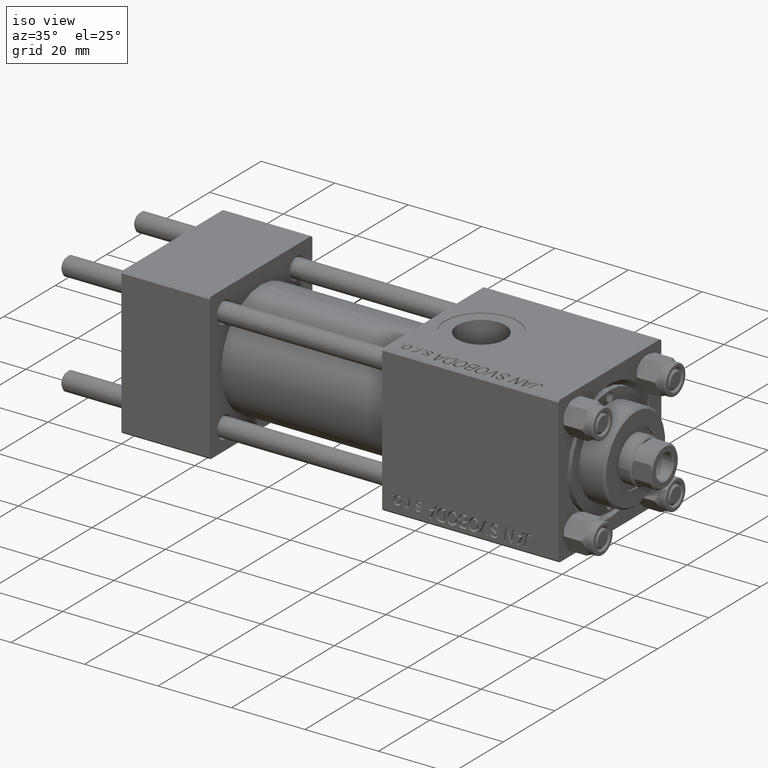
[diagram: clean part render]
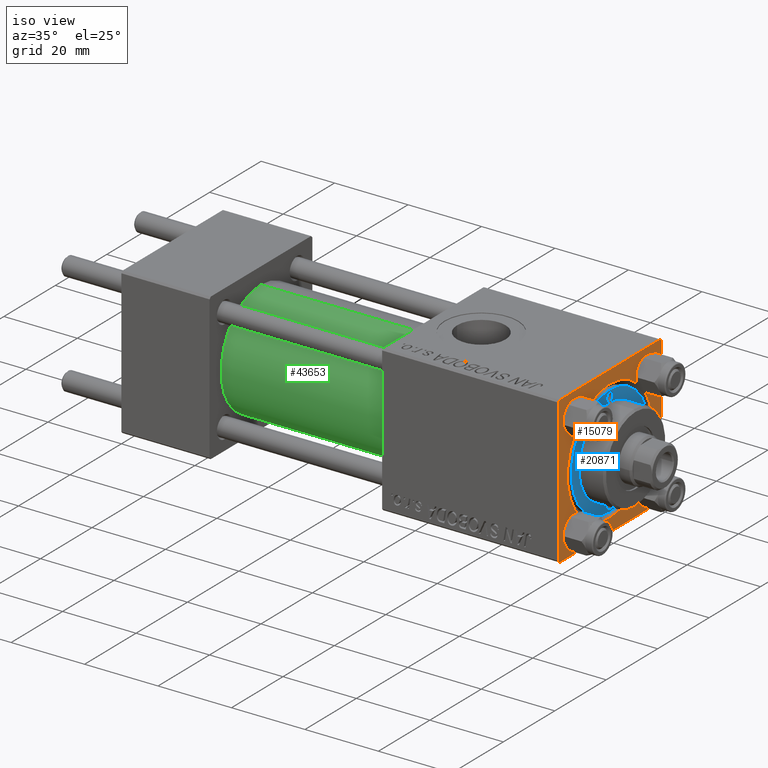
[diagram: same view with three faces highlighted in distinct colors, each labeled with its STEP entity id]
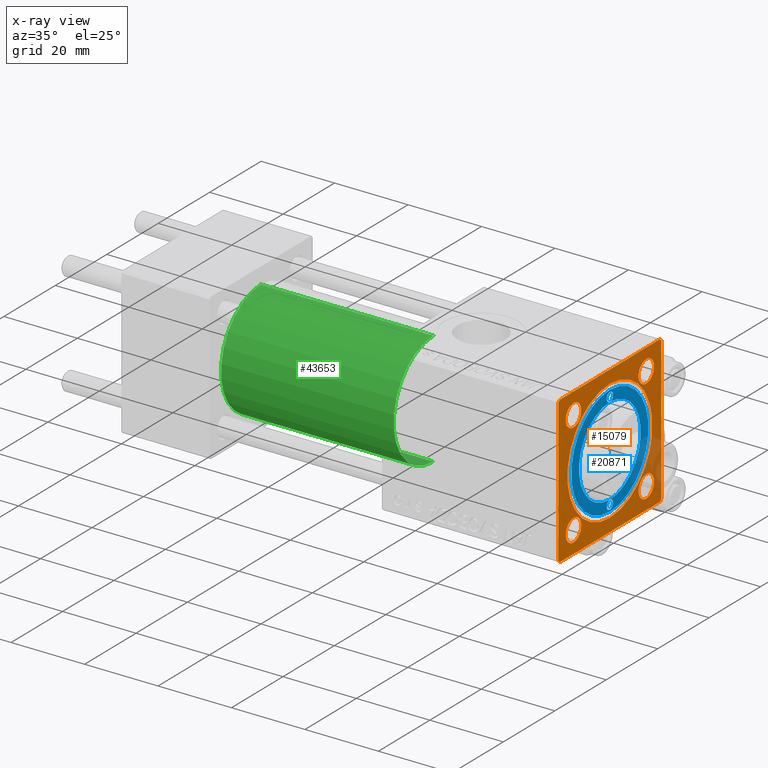
[diagram: x-ray of the same camera — body ghosted, the three highlighted faces saturated]
A machine part, iso view with three faces highlighted in distinct colors.
The next image is the same camera in x-ray (body ghosted, the three faces saturated) — at least one of them is partly hidden behind the body in this view.
Their STEP definitions:

[orange] entity #15079 — the highlighted planar face has unit normal (-1, 0, 0).
#350 = DIRECTION ( 'NONE',  ( -1.000000000000000000, -0.000000000000000000, -0.000000000000000000 ) ) ;
#401 = DIRECTION ( 'NONE',  ( -1.000000000000000000, -0.000000000000000000, -0.000000000000000000 ) ) ;
#537 = DIRECTION ( 'NONE',  ( 0.000000000000000000, 0.000000000000000000, 1.000000000000000000 ) ) ;
#595 = VERTEX_POINT ( 'NONE', #20015 ) ;
#1360 = CARTESIAN_POINT ( 'NONE',  ( 119.0000000000000142, 0.000000000000000000, 0.000000000000000000 ) ) ;
#1429 = ORIENTED_EDGE ( 'NONE', *, *, #46907, .T. ) ;
#1576 = EDGE_CURVE ( 'NONE', #47763, #35664, #33543, .T. ) ;
#1869 = EDGE_LOOP ( 'NONE', ( #9556, #32699, #48989, #27683, #28500, #45691, #49365, #3422 ) ) ;
#2067 = DIRECTION ( 'NONE',  ( 0.000000000000000000, 0.000000000000000000, 1.000000000000000000 ) ) ;
#2308 = CARTESIAN_POINT ( 'NONE',  ( 119.0000000000000142, 14.15000000000000036, -14.15000000000000036 ) ) ;
#2960 = VERTEX_POINT ( 'NONE', #28159 ) ;
#3079 = VECTOR ( 'NONE', #17156, 1000.000000000000000 ) ;
#3242 = EDGE_CURVE ( 'NONE', #28154, #10183, #8111, .T. ) ;
#3253 = DIRECTION ( 'NONE',  ( 0.000000000000000000, 0.000000000000000000, -1.000000000000000000 ) ) ;
#3333 = DIRECTION ( 'NONE',  ( -1.000000000000000000, -0.000000000000000000, -0.000000000000000000 ) ) ;
#3422 = ORIENTED_EDGE ( 'NONE', *, *, #24208, .T. ) ;
#3576 = VECTOR ( 'NONE', #15401, 999.9999999999998863 ) ;
#4071 = CARTESIAN_POINT ( 'NONE',  ( 119.0000000000000142, -20.00000000000000355, 19.99999999999999645 ) ) ;
#5665 = DIRECTION ( 'NONE',  ( -1.000000000000000000, -0.000000000000000000, -0.000000000000000000 ) ) ;
#5805 = EDGE_CURVE ( 'NONE', #47763, #36830, #30387, .T. ) ;
#6480 = DIRECTION ( 'NONE',  ( -1.000000000000000000, -0.000000000000000000, -0.000000000000000000 ) ) ;
#6944 = EDGE_LOOP ( 'NONE', ( #40904, #9887 ) ) ;
#7025 = EDGE_CURVE ( 'NONE', #45436, #37199, #18712, .T. ) ;
#7185 = ORIENTED_EDGE ( 'NONE', *, *, #7025, .T. ) ;
#7190 = VERTEX_POINT ( 'NONE', #48741 ) ;
#8111 = CIRCLE ( 'NONE', #42799, 16.50000000000001421 ) ;
#8191 = EDGE_LOOP ( 'NONE', ( #37992, #27934 ) ) ;
#8194 = DIRECTION ( 'NONE',  ( -1.000000000000000000, 0.000000000000000000, -0.000000000000000000 ) ) ;
#8418 = EDGE_CURVE ( 'NONE', #34794, #595, #13114, .T. ) ;
#8577 = ORIENTED_EDGE ( 'NONE', *, *, #14485, .T. ) ;
#9305 = CARTESIAN_POINT ( 'NONE',  ( 119.0000000000000142, 14.15000000000000036, -11.14999999999999680 ) ) ;
#9416 = CARTESIAN_POINT ( 'NONE',  ( 119.0000000000000142, 14.15000000000000036, 14.15000000000000036 ) ) ;
#9556 = ORIENTED_EDGE ( 'NONE', *, *, #25754, .T. ) ;
#9830 = LINE ( 'NONE', #36829, #3079 ) ;
#9887 = ORIENTED_EDGE ( 'NONE', *, *, #32369, .T. ) ;
#10086 = LINE ( 'NONE', #16904, #38244 ) ;
#10183 = VERTEX_POINT ( 'NONE', #29644 ) ;
#10463 = AXIS2_PLACEMENT_3D ( 'NONE', #9416, #32118, #16743 ) ;
#10580 = DIRECTION ( 'NONE',  ( -1.000000000000000000, -0.000000000000000000, -0.000000000000000000 ) ) ;
#10765 = AXIS2_PLACEMENT_3D ( 'NONE', #25663, #6480, #21887 ) ;
#10826 = AXIS2_PLACEMENT_3D ( 'NONE', #1360, #8194, #46575 ) ;
#10905 = DIRECTION ( 'NONE',  ( 0.000000000000000000, 0.000000000000000000, 1.000000000000000000 ) ) ;
#11289 = CIRCLE ( 'NONE', #23390, 3.000000000000004441 ) ;
#11691 = CARTESIAN_POINT ( 'NONE',  ( 119.0000000000000142, -20.00000000000000000, -19.50000000000001066 ) ) ;
#12116 = LINE ( 'NONE', #49978, #3576 ) ;
#12150 = AXIS2_PLACEMENT_3D ( 'NONE', #22748, #15928, #10905 ) ;
#12575 = EDGE_CURVE ( 'NONE', #25505, #37127, #30009, .T. ) ;
#13114 = LINE ( 'NONE', #33268, #18755 ) ;
#13208 = AXIS2_PLACEMENT_3D ( 'NONE', #2308, #36388, #2067 ) ;
#14284 = CARTESIAN_POINT ( 'NONE',  ( 119.0000000000000142, -20.00000000000000355, 19.50000000000002487 ) ) ;
#14295 = CARTESIAN_POINT ( 'NONE',  ( 119.0000000000000142, 19.99999999999999645, 19.49999999999998579 ) ) ;
#14485 = EDGE_CURVE ( 'NONE', #7190, #27793, #16419, .T. ) ;
#14852 = CARTESIAN_POINT ( 'NONE',  ( 119.0000000000000142, -19.50000000000001776, 19.99999999999999645 ) ) ;
#15079 = ADVANCED_FACE ( 'NONE', ( #35197, #19572, #23845, #27872, #27123, #15779 ), #31905, .F. ) ;
#15401 = DIRECTION ( 'NONE',  ( 0.000000000000000000, 0.7071067811865376918, -0.7071067811865574537 ) ) ;
#15446 = CARTESIAN_POINT ( 'NONE',  ( 119.0000000000000142, -14.15000000000000036, -14.15000000000000036 ) ) ;
#15671 = DIRECTION ( 'NONE',  ( 0.000000000000000000, 0.000000000000000000, 1.000000000000000000 ) ) ;
#15779 = FACE_OUTER_BOUND ( 'NONE', #1869, .T. ) ;
#15928 = DIRECTION ( 'NONE',  ( -1.000000000000000000, -0.000000000000000000, -0.000000000000000000 ) ) ;
#16004 = CARTESIAN_POINT ( 'NONE',  ( 119.0000000000000142, -14.15000000000000036, 11.15000000000002700 ) ) ;
#16419 = CIRCLE ( 'NONE', #10765, 3.000000000000000888 ) ;
#16530 = EDGE_CURVE ( 'NONE', #40784, #595, #12116, .T. ) ;
#16636 = EDGE_CURVE ( 'NONE', #34794, #35664, #10086, .T. ) ;
#16743 = DIRECTION ( 'NONE',  ( 0.000000000000000000, 0.000000000000000000, 1.000000000000000000 ) ) ;
#16904 = CARTESIAN_POINT ( 'NONE',  ( 119.0000000000000142, 19.99999999999999645, -19.50000000000000000 ) ) ;
#17156 = DIRECTION ( 'NONE',  ( 0.000000000000000000, -1.000000000000000000, -8.673617379884035472E-17 ) ) ;
#17242 = CIRCLE ( 'NONE', #13208, 3.000000000000004441 ) ;
#17393 = DIRECTION ( 'NONE',  ( 0.000000000000000000, -1.000000000000000000, 0.000000000000000000 ) ) ;
#18712 = CIRCLE ( 'NONE', #47787, 2.999999999999973355 ) ;
#18755 = VECTOR ( 'NONE', #17393, 1000.000000000000000 ) ;
#19333 = DIRECTION ( 'NONE',  ( -0.000000000000000000, -0.7071067811865573427, -0.7071067811865376918 ) ) ;
#19572 = FACE_BOUND ( 'NONE', #22689, .T. ) ;
#19602 = CARTESIAN_POINT ( 'NONE',  ( 119.0000000000000142, -20.00000000000000355, 19.50000000000002487 ) ) ;
#20015 = CARTESIAN_POINT ( 'NONE',  ( 119.0000000000000142, -19.50000000000002487, -20.00000000000000000 ) ) ;
#20134 = AXIS2_PLACEMENT_3D ( 'NONE', #35487, #401, #39276 ) ;
#21157 = CARTESIAN_POINT ( 'NONE',  ( 119.0000000000000142, 19.99999999999999645, -19.50000000000000000 ) ) ;
#21887 = DIRECTION ( 'NONE',  ( 0.000000000000000000, 0.000000000000000000, 1.000000000000000000 ) ) ;
#22689 = EDGE_LOOP ( 'NONE', ( #28915, #1429 ) ) ;
#22748 = CARTESIAN_POINT ( 'NONE',  ( 119.0000000000000142, -14.15000000000000036, 14.15000000000000036 ) ) ;
#23003 = LINE ( 'NONE', #4071, #40885 ) ;
#23067 = CARTESIAN_POINT ( 'NONE',  ( 119.0000000000000142, 19.49999999999996803, 20.00000000000000000 ) ) ;
#23390 = AXIS2_PLACEMENT_3D ( 'NONE', #45964, #10580, #15671 ) ;
#23845 = FACE_BOUND ( 'NONE', #45568, .T. ) ;
#24104 = CARTESIAN_POINT ( 'NONE',  ( 119.0000000000000142, 0.000000000000000000, -16.50000000000001421 ) ) ;
#24208 = EDGE_CURVE ( 'NONE', #27579, #38489, #34977, .T. ) ;
#25505 = VERTEX_POINT ( 'NONE', #39719 ) ;
#25596 = VECTOR ( 'NONE', #19333, 1000.000000000000114 ) ;
#25663 = CARTESIAN_POINT ( 'NONE',  ( 119.0000000000000142, 14.15000000000000036, 14.15000000000000036 ) ) ;
#25754 = EDGE_CURVE ( 'NONE', #38489, #40784, #23003, .T. ) ;
#26283 = EDGE_CURVE ( 'NONE', #2960, #48192, #48147, .T. ) ;
#27123 = FACE_BOUND ( 'NONE', #6944, .T. ) ;
#27579 = VERTEX_POINT ( 'NONE', #14852 ) ;
#27683 = ORIENTED_EDGE ( 'NONE', *, *, #16636, .T. ) ;
#27793 = VERTEX_POINT ( 'NONE', #31974 ) ;
#27872 = FACE_BOUND ( 'NONE', #35063, .T. ) ;
#27934 = ORIENTED_EDGE ( 'NONE', *, *, #34108, .T. ) ;
#28154 = VERTEX_POINT ( 'NONE', #24104 ) ;
#28159 = CARTESIAN_POINT ( 'NONE',  ( 119.0000000000000142, -14.15000000000000036, -17.15000000000000568 ) ) ;
#28217 = VECTOR ( 'NONE', #3253, 1000.000000000000000 ) ;
#28247 = DIRECTION ( 'NONE',  ( -0.000000000000000000, 0.7071067811865474617, 0.7071067811865474617 ) ) ;
#28500 = ORIENTED_EDGE ( 'NONE', *, *, #1576, .F. ) ;
#28915 = ORIENTED_EDGE ( 'NONE', *, *, #12575, .T. ) ;
#29069 = EDGE_CURVE ( 'NONE', #36830, #27579, #9830, .T. ) ;
#29644 = CARTESIAN_POINT ( 'NONE',  ( 119.0000000000000142, 2.020667218593134678E-15, 16.50000000000001421 ) ) ;
#30009 = CIRCLE ( 'NONE', #30838, 3.000000000000004441 ) ;
#30387 = LINE ( 'NONE', #23067, #32404 ) ;
#30838 = AXIS2_PLACEMENT_3D ( 'NONE', #35960, #5665, #36462 ) ;
#31384 = CIRCLE ( 'NONE', #20134, 16.50000000000001421 ) ;
#31905 = PLANE ( 'NONE',  #10826 ) ;
#31974 = CARTESIAN_POINT ( 'NONE',  ( 119.0000000000000142, 14.15000000000000036, 17.15000000000000568 ) ) ;
#32118 = DIRECTION ( 'NONE',  ( -1.000000000000000000, -0.000000000000000000, -0.000000000000000000 ) ) ;
#32369 = EDGE_CURVE ( 'NONE', #10183, #28154, #31384, .T. ) ;
#32404 = VECTOR ( 'NONE', #34666, 999.9999999999998863 ) ;
#32699 = ORIENTED_EDGE ( 'NONE', *, *, #16530, .T. ) ;
#32788 = EDGE_CURVE ( 'NONE', #27793, #7190, #40301, .T. ) ;
#32807 = AXIS2_PLACEMENT_3D ( 'NONE', #15446, #38176, #537 ) ;
#33268 = CARTESIAN_POINT ( 'NONE',  ( 119.0000000000000142, 19.99999999999999645, -20.00000000000000000 ) ) ;
#33543 = LINE ( 'NONE', #48960, #28217 ) ;
#34108 = EDGE_CURVE ( 'NONE', #48192, #2960, #11289, .T. ) ;
#34118 = DIRECTION ( 'NONE',  ( 0.000000000000000000, 0.000000000000000000, 1.000000000000000000 ) ) ;
#34467 = CARTESIAN_POINT ( 'NONE',  ( 119.0000000000000142, -14.15000000000000036, -11.14999999999999680 ) ) ;
#34666 = DIRECTION ( 'NONE',  ( 0.000000000000000000, -0.7071067811865574537, 0.7071067811865376918 ) ) ;
#34794 = VERTEX_POINT ( 'NONE', #46858 ) ;
#34977 = LINE ( 'NONE', #19602, #25596 ) ;
#35035 = EDGE_CURVE ( 'NONE', #37199, #45436, #41957, .T. ) ;
#35063 = EDGE_LOOP ( 'NONE', ( #7185, #37189 ) ) ;
#35197 = FACE_BOUND ( 'NONE', #8191, .T. ) ;
#35487 = CARTESIAN_POINT ( 'NONE',  ( 119.0000000000000142, 0.000000000000000000, 0.000000000000000000 ) ) ;
#35664 = VERTEX_POINT ( 'NONE', #21157 ) ;
#35960 = CARTESIAN_POINT ( 'NONE',  ( 119.0000000000000142, 14.15000000000000036, -14.15000000000000036 ) ) ;
#36388 = DIRECTION ( 'NONE',  ( -1.000000000000000000, -0.000000000000000000, -0.000000000000000000 ) ) ;
#36462 = DIRECTION ( 'NONE',  ( 0.000000000000000000, 0.000000000000000000, 1.000000000000000000 ) ) ;
#36829 = CARTESIAN_POINT ( 'NONE',  ( 119.0000000000000142, 19.99999999999999645, 20.00000000000000000 ) ) ;
#36830 = VERTEX_POINT ( 'NONE', #41782 ) ;
#37127 = VERTEX_POINT ( 'NONE', #9305 ) ;
#37189 = ORIENTED_EDGE ( 'NONE', *, *, #35035, .T. ) ;
#37199 = VERTEX_POINT ( 'NONE', #48188 ) ;
#37905 = DIRECTION ( 'NONE',  ( 0.000000000000000000, 8.673617379884036705E-17, -1.000000000000000000 ) ) ;
#37992 = ORIENTED_EDGE ( 'NONE', *, *, #26283, .T. ) ;
#38176 = DIRECTION ( 'NONE',  ( -1.000000000000000000, -0.000000000000000000, -0.000000000000000000 ) ) ;
#38244 = VECTOR ( 'NONE', #28247, 1000.000000000000114 ) ;
#38489 = VERTEX_POINT ( 'NONE', #14284 ) ;
#39221 = DIRECTION ( 'NONE',  ( 0.000000000000000000, 0.000000000000000000, 1.000000000000000000 ) ) ;
#39276 = DIRECTION ( 'NONE',  ( 0.000000000000000000, 0.000000000000000000, 1.000000000000000000 ) ) ;
#39719 = CARTESIAN_POINT ( 'NONE',  ( 119.0000000000000142, 14.15000000000000036, -17.15000000000000568 ) ) ;
#40301 = CIRCLE ( 'NONE', #10463, 3.000000000000000888 ) ;
#40784 = VERTEX_POINT ( 'NONE', #11691 ) ;
#40885 = VECTOR ( 'NONE', #37905, 1000.000000000000000 ) ;
#40904 = ORIENTED_EDGE ( 'NONE', *, *, #3242, .T. ) ;
#41782 = CARTESIAN_POINT ( 'NONE',  ( 119.0000000000000142, 19.49999999999996803, 20.00000000000000000 ) ) ;
#41883 = ORIENTED_EDGE ( 'NONE', *, *, #32788, .T. ) ;
#41954 = CARTESIAN_POINT ( 'NONE',  ( 119.0000000000000142, -14.15000000000000036, 14.15000000000000036 ) ) ;
#41957 = CIRCLE ( 'NONE', #12150, 2.999999999999973355 ) ;
#42774 = CARTESIAN_POINT ( 'NONE',  ( 119.0000000000000142, 0.000000000000000000, 0.000000000000000000 ) ) ;
#42799 = AXIS2_PLACEMENT_3D ( 'NONE', #42774, #350, #39221 ) ;
#45436 = VERTEX_POINT ( 'NONE', #16004 ) ;
#45568 = EDGE_LOOP ( 'NONE', ( #8577, #41883 ) ) ;
#45691 = ORIENTED_EDGE ( 'NONE', *, *, #5805, .T. ) ;
#45964 = CARTESIAN_POINT ( 'NONE',  ( 119.0000000000000142, -14.15000000000000036, -14.15000000000000036 ) ) ;
#46575 = DIRECTION ( 'NONE',  ( -0.000000000000000000, 0.000000000000000000, 1.000000000000000000 ) ) ;
#46858 = CARTESIAN_POINT ( 'NONE',  ( 119.0000000000000142, 19.49999999999999645, -20.00000000000000000 ) ) ;
#46907 = EDGE_CURVE ( 'NONE', #37127, #25505, #17242, .T. ) ;
#47763 = VERTEX_POINT ( 'NONE', #14295 ) ;
#47787 = AXIS2_PLACEMENT_3D ( 'NONE', #41954, #3333, #34118 ) ;
#48147 = CIRCLE ( 'NONE', #32807, 3.000000000000004441 ) ;
#48188 = CARTESIAN_POINT ( 'NONE',  ( 119.0000000000000142, -14.15000000000000036, 17.14999999999997726 ) ) ;
#48192 = VERTEX_POINT ( 'NONE', #34467 ) ;
#48741 = CARTESIAN_POINT ( 'NONE',  ( 119.0000000000000142, 14.15000000000000036, 11.14999999999999858 ) ) ;
#48960 = CARTESIAN_POINT ( 'NONE',  ( 119.0000000000000142, 19.99999999999999645, 20.00000000000000000 ) ) ;
#48989 = ORIENTED_EDGE ( 'NONE', *, *, #8418, .F. ) ;
#49365 = ORIENTED_EDGE ( 'NONE', *, *, #29069, .T. ) ;
#49978 = CARTESIAN_POINT ( 'NONE',  ( 119.0000000000000142, -19.50000000000002487, -20.00000000000000000 ) ) ;

[blue] entity #20871 — the highlighted planar face has unit normal (1, 0, -0).
#19 = ORIENTED_EDGE ( 'NONE', *, *, #40716, .F. ) ;
#250 = DIRECTION ( 'NONE',  ( 1.000000000000000000, 0.000000000000000000, 0.000000000000000000 ) ) ;
#1106 = VERTEX_POINT ( 'NONE', #23727 ) ;
#1187 = EDGE_CURVE ( 'NONE', #7667, #1106, #7244, .T. ) ;
#1418 = CARTESIAN_POINT ( 'NONE',  ( 14.49999999999999822, 0.000000000000000000, 28.69999999999999929 ) ) ;
#1489 = CIRCLE ( 'NONE', #36154, 15.00000000000000000 ) ;
#1815 = CARTESIAN_POINT ( 'NONE',  ( 0.000000000000000000, 0.000000000000000000, 28.69999999999999929 ) ) ;
#2465 = AXIS2_PLACEMENT_3D ( 'NONE', #10585, #26460, #26218 ) ;
#2969 = ORIENTED_EDGE ( 'NONE', *, *, #1187, .F. ) ;
#3540 = ORIENTED_EDGE ( 'NONE', *, *, #34436, .F. ) ;
#5051 = DIRECTION ( 'NONE',  ( 1.000000000000000000, 0.000000000000000000, 0.000000000000000000 ) ) ;
#5081 = ORIENTED_EDGE ( 'NONE', *, *, #29215, .T. ) ;
#5122 = DIRECTION ( 'NONE',  ( 0.000000000000000000, 0.000000000000000000, 1.000000000000000000 ) ) ;
#6461 = AXIS2_PLACEMENT_3D ( 'NONE', #40372, #24229, #47462 ) ;
#6656 = DIRECTION ( 'NONE',  ( 1.000000000000000000, 0.000000000000000000, 0.000000000000000000 ) ) ;
#7244 = CIRCLE ( 'NONE', #6461, 1.249999999999999334 ) ;
#7667 = VERTEX_POINT ( 'NONE', #1418 ) ;
#7844 = ORIENTED_EDGE ( 'NONE', *, *, #39898, .T. ) ;
#9094 = EDGE_CURVE ( 'NONE', #49370, #11671, #45390, .T. ) ;
#9455 = FACE_OUTER_BOUND ( 'NONE', #47613, .T. ) ;
#9707 = CIRCLE ( 'NONE', #2465, 12.00000000000000178 ) ;
#10585 = CARTESIAN_POINT ( 'NONE',  ( 0.000000000000000000, 0.000000000000000000, 28.69999999999999929 ) ) ;
#10626 = CARTESIAN_POINT ( 'NONE',  ( -14.49999999999999822, 1.530808498934190585E-16, 28.69999999999999929 ) ) ;
#11671 = VERTEX_POINT ( 'NONE', #10626 ) ;
#12539 = EDGE_LOOP ( 'NONE', ( #3540, #19, #13032, #48732, #2969, #32703 ) ) ;
#12877 = DIRECTION ( 'NONE',  ( 0.000000000000000000, 0.000000000000000000, 1.000000000000000000 ) ) ;
#12932 = DIRECTION ( 'NONE',  ( 0.000000000000000000, 0.000000000000000000, 1.000000000000000000 ) ) ;
#13032 = ORIENTED_EDGE ( 'NONE', *, *, #9094, .F. ) ;
#13259 = DIRECTION ( 'NONE',  ( 1.000000000000000000, 0.000000000000000000, -0.000000000000000000 ) ) ;
#13386 = CARTESIAN_POINT ( 'NONE',  ( 0.000000000000000000, 0.000000000000000000, 28.69999999999999929 ) ) ;
#13502 = CARTESIAN_POINT ( 'NONE',  ( 0.000000000000000000, 0.000000000000000000, 28.69999999999999929 ) ) ;
#13876 = VERTEX_POINT ( 'NONE', #28132 ) ;
#14240 = FACE_BOUND ( 'NONE', #12539, .T. ) ;
#16224 = AXIS2_PLACEMENT_3D ( 'NONE', #1815, #12932, #24546 ) ;
#17310 = CARTESIAN_POINT ( 'NONE',  ( -13.25000000000000178, 0.000000000000000000, 28.69999999999999929 ) ) ;
#20844 = AXIS2_PLACEMENT_3D ( 'NONE', #43184, #46707, #250 ) ;
#20871 = ADVANCED_FACE ( 'NONE', ( #14240, #9455 ), #29615, .T. ) ;
#21611 = CIRCLE ( 'NONE', #49811, 12.00000000000000178 ) ;
#23727 = CARTESIAN_POINT ( 'NONE',  ( 12.00000000000000178, 0.000000000000000000, 28.69999999999999929 ) ) ;
#24229 = DIRECTION ( 'NONE',  ( 0.000000000000000000, 0.000000000000000000, 1.000000000000000000 ) ) ;
#24546 = DIRECTION ( 'NONE',  ( 1.000000000000000000, 0.000000000000000000, 0.000000000000000000 ) ) ;
#26218 = DIRECTION ( 'NONE',  ( 1.000000000000000000, 0.000000000000000000, 0.000000000000000000 ) ) ;
#26460 = DIRECTION ( 'NONE',  ( 0.000000000000000000, 0.000000000000000000, 1.000000000000000000 ) ) ;
#28132 = CARTESIAN_POINT ( 'NONE',  ( 15.00000000000000000, 1.836970198721029589E-15, 28.69999999999999929 ) ) ;
#28233 = EDGE_CURVE ( 'NONE', #1106, #49370, #21611, .T. ) ;
#29071 = VERTEX_POINT ( 'NONE', #29244 ) ;
#29215 = EDGE_CURVE ( 'NONE', #13876, #29071, #1489, .T. ) ;
#29244 = CARTESIAN_POINT ( 'NONE',  ( -15.00000000000000000, 0.000000000000000000, 28.69999999999999929 ) ) ;
#29281 = AXIS2_PLACEMENT_3D ( 'NONE', #41243, #47843, #13259 ) ;
#29615 = PLANE ( 'NONE',  #29281 ) ;
#29634 = DIRECTION ( 'NONE',  ( 1.000000000000000000, 0.000000000000000000, 0.000000000000000000 ) ) ;
#29709 = EDGE_CURVE ( 'NONE', #1106, #7667, #30476, .T. ) ;
#30476 = CIRCLE ( 'NONE', #20844, 1.249999999999999334 ) ;
#32703 = ORIENTED_EDGE ( 'NONE', *, *, #29709, .F. ) ;
#33673 = DIRECTION ( 'NONE',  ( 0.000000000000000000, 0.000000000000000000, 1.000000000000000000 ) ) ;
#34436 = EDGE_CURVE ( 'NONE', #49370, #1106, #9707, .T. ) ;
#34639 = DIRECTION ( 'NONE',  ( 1.000000000000000000, 0.000000000000000000, 0.000000000000000000 ) ) ;
#34902 = CARTESIAN_POINT ( 'NONE',  ( -13.25000000000000178, 0.000000000000000000, 28.69999999999999929 ) ) ;
#36154 = AXIS2_PLACEMENT_3D ( 'NONE', #13502, #44794, #6656 ) ;
#39898 = EDGE_CURVE ( 'NONE', #29071, #13876, #42035, .T. ) ;
#40372 = CARTESIAN_POINT ( 'NONE',  ( 13.25000000000000000, 0.000000000000000000, 28.69999999999999929 ) ) ;
#40407 = CIRCLE ( 'NONE', #45281, 1.249999999999997558 ) ;
#40716 = EDGE_CURVE ( 'NONE', #11671, #49370, #40407, .T. ) ;
#41243 = CARTESIAN_POINT ( 'NONE',  ( 0.000000000000000000, 0.000000000000000000, 28.69999999999999929 ) ) ;
#42035 = CIRCLE ( 'NONE', #16224, 15.00000000000000000 ) ;
#42991 = AXIS2_PLACEMENT_3D ( 'NONE', #17310, #33673, #29634 ) ;
#43184 = CARTESIAN_POINT ( 'NONE',  ( 13.25000000000000000, 0.000000000000000000, 28.69999999999999929 ) ) ;
#44794 = DIRECTION ( 'NONE',  ( 0.000000000000000000, 0.000000000000000000, 1.000000000000000000 ) ) ;
#45281 = AXIS2_PLACEMENT_3D ( 'NONE', #34902, #5122, #34639 ) ;
#45390 = CIRCLE ( 'NONE', #42991, 1.249999999999997558 ) ;
#46707 = DIRECTION ( 'NONE',  ( 0.000000000000000000, 0.000000000000000000, 1.000000000000000000 ) ) ;
#47462 = DIRECTION ( 'NONE',  ( 1.000000000000000000, 0.000000000000000000, 0.000000000000000000 ) ) ;
#47613 = EDGE_LOOP ( 'NONE', ( #7844, #5081 ) ) ;
#47843 = DIRECTION ( 'NONE',  ( 0.000000000000000000, 0.000000000000000000, 1.000000000000000000 ) ) ;
#48055 = CARTESIAN_POINT ( 'NONE',  ( -12.00000000000000178, 0.000000000000000000, 28.69999999999999929 ) ) ;
#48732 = ORIENTED_EDGE ( 'NONE', *, *, #28233, .F. ) ;
#49370 = VERTEX_POINT ( 'NONE', #48055 ) ;
#49811 = AXIS2_PLACEMENT_3D ( 'NONE', #13386, #12877, #5051 ) ;

[green] entity #43653 — the highlighted cylindrical surface (partial cylindrical patch) has radius 15.5 mm, axis along (-1, -0, -0).
#3988 = DIRECTION ( 'NONE',  ( -1.000000000000000000, -0.000000000000000000, -0.000000000000000000 ) ) ;
#4476 = VECTOR ( 'NONE', #38299, 1000.000000000000000 ) ;
#4478 = CARTESIAN_POINT ( 'NONE',  ( 24.00000000000000000, 1.898202538678397557E-15, -15.50000000000000000 ) ) ;
#6602 = CIRCLE ( 'NONE', #34797, 15.50000000000000000 ) ;
#11410 = DIRECTION ( 'NONE',  ( 1.000000000000000000, 0.000000000000000000, 0.000000000000000000 ) ) ;
#11883 = DIRECTION ( 'NONE',  ( -1.000000000000000000, -0.000000000000000000, -0.000000000000000000 ) ) ;
#12066 = LINE ( 'NONE', #47173, #34409 ) ;
#13619 = EDGE_CURVE ( 'NONE', #44776, #47488, #45387, .T. ) ;
#15586 = ORIENTED_EDGE ( 'NONE', *, *, #37880, .F. ) ;
#15587 = LINE ( 'NONE', #35011, #4476 ) ;
#16849 = CARTESIAN_POINT ( 'NONE',  ( 24.00000000000000000, 0.000000000000000000, 0.000000000000000000 ) ) ;
#18227 = CARTESIAN_POINT ( 'NONE',  ( 24.00000000000000000, 0.000000000000000000, 15.50000000000000000 ) ) ;
#18860 = EDGE_CURVE ( 'NONE', #39848, #47488, #15587, .T. ) ;
#18985 = CARTESIAN_POINT ( 'NONE',  ( 71.00000000000001421, 0.000000000000000000, 0.000000000000000000 ) ) ;
#19891 = CARTESIAN_POINT ( 'NONE',  ( 71.00000000000001421, 0.000000000000000000, 15.50000000000000000 ) ) ;
#22659 = EDGE_CURVE ( 'NONE', #40143, #44776, #12066, .T. ) ;
#23235 = CARTESIAN_POINT ( 'NONE',  ( 71.00000000000001421, 0.000000000000000000, 0.000000000000000000 ) ) ;
#27024 = DIRECTION ( 'NONE',  ( 0.000000000000000000, 0.000000000000000000, 1.000000000000000000 ) ) ;
#27735 = ORIENTED_EDGE ( 'NONE', *, *, #18860, .F. ) ;
#28023 = CYLINDRICAL_SURFACE ( 'NONE', #42131, 15.50000000000000000 ) ;
#31055 = FACE_OUTER_BOUND ( 'NONE', #31179, .T. ) ;
#31100 = CARTESIAN_POINT ( 'NONE',  ( 71.00000000000001421, 1.898202538678397557E-15, -15.50000000000000000 ) ) ;
#31179 = EDGE_LOOP ( 'NONE', ( #27735, #15586, #44367, #40071 ) ) ;
#32228 = DIRECTION ( 'NONE',  ( 0.000000000000000000, 0.000000000000000000, 1.000000000000000000 ) ) ;
#34409 = VECTOR ( 'NONE', #3988, 1000.000000000000000 ) ;
#34797 = AXIS2_PLACEMENT_3D ( 'NONE', #18985, #11410, #46495 ) ;
#35011 = CARTESIAN_POINT ( 'NONE',  ( 71.00000000000001421, 1.898202538678397557E-15, -15.50000000000000000 ) ) ;
#35274 = DIRECTION ( 'NONE',  ( 1.000000000000000000, 0.000000000000000000, 0.000000000000000000 ) ) ;
#37880 = EDGE_CURVE ( 'NONE', #40143, #39848, #6602, .T. ) ;
#38299 = DIRECTION ( 'NONE',  ( -1.000000000000000000, -0.000000000000000000, -0.000000000000000000 ) ) ;
#39848 = VERTEX_POINT ( 'NONE', #31100 ) ;
#40071 = ORIENTED_EDGE ( 'NONE', *, *, #13619, .T. ) ;
#40143 = VERTEX_POINT ( 'NONE', #19891 ) ;
#42131 = AXIS2_PLACEMENT_3D ( 'NONE', #23235, #11883, #27024 ) ;
#42983 = AXIS2_PLACEMENT_3D ( 'NONE', #16849, #35274, #32228 ) ;
#43653 = ADVANCED_FACE ( 'NONE', ( #31055 ), #28023, .T. ) ;
#44367 = ORIENTED_EDGE ( 'NONE', *, *, #22659, .T. ) ;
#44776 = VERTEX_POINT ( 'NONE', #18227 ) ;
#45387 = CIRCLE ( 'NONE', #42983, 15.50000000000000000 ) ;
#46495 = DIRECTION ( 'NONE',  ( 0.000000000000000000, 0.000000000000000000, -1.000000000000000000 ) ) ;
#47173 = CARTESIAN_POINT ( 'NONE',  ( 71.00000000000001421, 0.000000000000000000, 15.50000000000000000 ) ) ;
#47488 = VERTEX_POINT ( 'NONE', #4478 ) ;